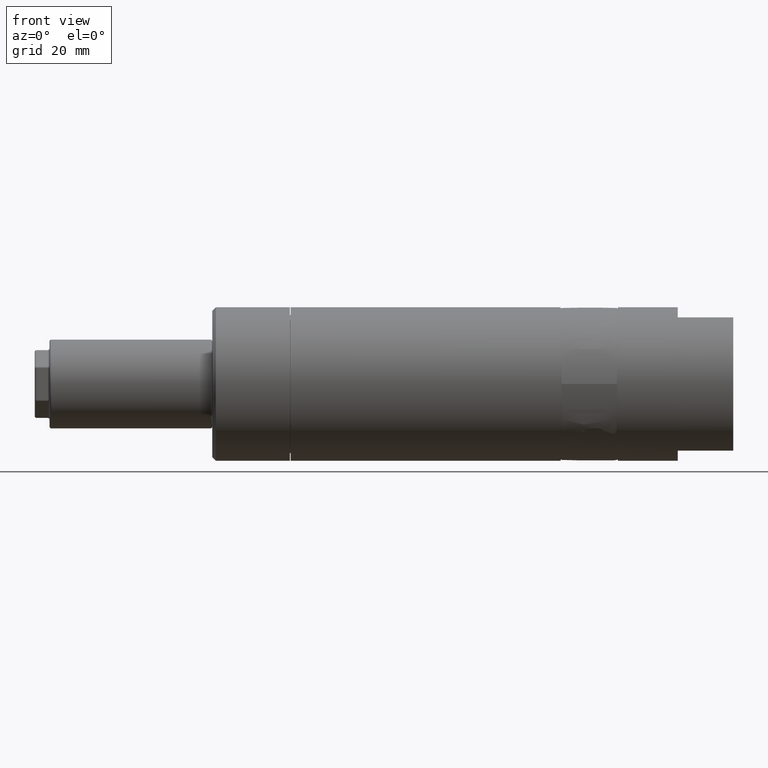
[diagram: clean part render]
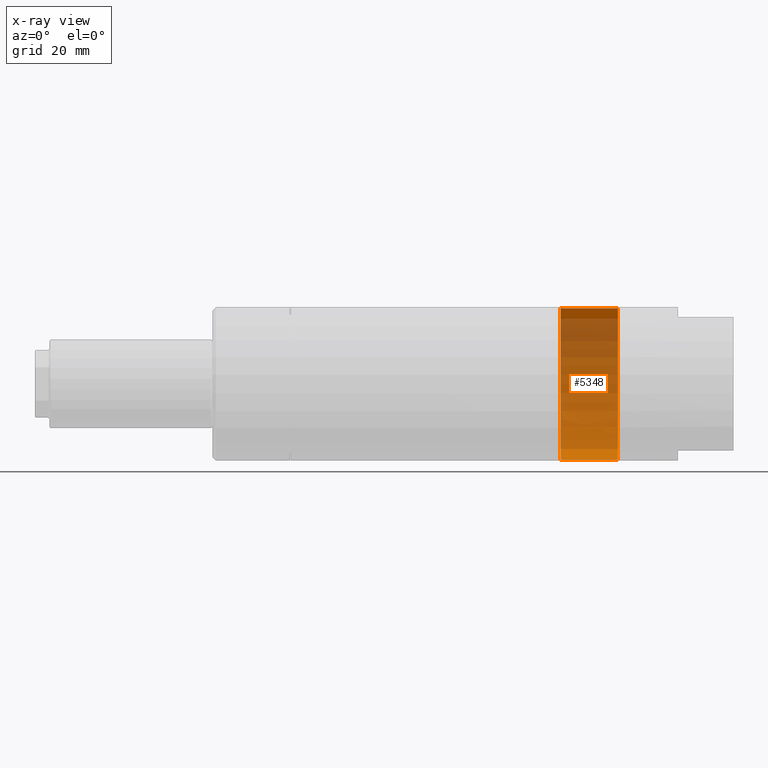
[diagram: x-ray — body ghosted, one internal face saturated and labeled with its STEP entity id]
A machine part, front view, then the same camera in x-ray: the body is ghosted and one INTERNAL B-rep face — a face not visible from any outside direction — is saturated and labeled: STEP entity #5348.
In plain terms, the highlighted cylindrical surface (partial cylindrical patch) has radius 20.45 mm, axis along (1, 0, 0).
Its self-contained STEP definition (entity closure, byte-faithful):
#216 = ORIENTED_EDGE ( 'NONE', *, *, #13164, .T. ) ;
#619 = DIRECTION ( 'NONE',  ( 1.000000000000000000, 0.0000000000000000000, 0.0000000000000000000 ) ) ;
#702 = CARTESIAN_POINT ( 'NONE',  ( -31.19999999999999900, 2.504402704256337000E-015, 20.44999999999999900 ) ) ;
#2868 = DIRECTION ( 'NONE',  ( 1.000000000000000000, 0.0000000000000000000, 0.0000000000000000000 ) ) ;
#3539 = CARTESIAN_POINT ( 'NONE',  ( -46.69999999999999600, 0.0000000000000000000, 0.0000000000000000000 ) ) ;
#3996 = CARTESIAN_POINT ( 'NONE',  ( -31.19999999999999900, 0.0000000000000000000, 0.0000000000000000000 ) ) ;
#4415 = CARTESIAN_POINT ( 'NONE',  ( 0.0000000000000000000, 0.0000000000000000000, -20.44999999999999900 ) ) ;
#4528 = CIRCLE ( 'NONE', #4906, 20.44999999999999900 ) ;
#4606 = CARTESIAN_POINT ( 'NONE',  ( 0.0000000000000000000, 2.504402704256337000E-015, 20.44999999999999900 ) ) ;
#4899 = AXIS2_PLACEMENT_3D ( 'NONE', #11643, #2868, #7247 ) ;
#4906 = AXIS2_PLACEMENT_3D ( 'NONE', #3539, #10689, #15150 ) ;
#4918 = VERTEX_POINT ( 'NONE', #7603 ) ;
#5348 = ADVANCED_FACE ( 'NONE', ( #17196 ), #14911, .T. ) ;
#5633 = CARTESIAN_POINT ( 'NONE',  ( -46.69999999999999600, 0.0000000000000000000, -20.44999999999999900 ) ) ;
#6609 = CIRCLE ( 'NONE', #7373, 20.44999999999999900 ) ;
#7247 = DIRECTION ( 'NONE',  ( 0.0000000000000000000, 0.0000000000000000000, -1.000000000000000000 ) ) ;
#7373 = AXIS2_PLACEMENT_3D ( 'NONE', #3996, #11330, #11087 ) ;
#7603 = CARTESIAN_POINT ( 'NONE',  ( -46.69999999999999600, 2.504402704256337000E-015, 20.44999999999999900 ) ) ;
#8102 = EDGE_CURVE ( 'NONE', #16271, #17191, #18211, .T. ) ;
#9153 = DIRECTION ( 'NONE',  ( 1.000000000000000000, 0.0000000000000000000, 0.0000000000000000000 ) ) ;
#10255 = CARTESIAN_POINT ( 'NONE',  ( -31.19999999999999900, 0.0000000000000000000, -20.44999999999999900 ) ) ;
#10689 = DIRECTION ( 'NONE',  ( 1.000000000000000000, 0.0000000000000000000, 0.0000000000000000000 ) ) ;
#11087 = DIRECTION ( 'NONE',  ( 0.0000000000000000000, 0.0000000000000000000, -1.000000000000000000 ) ) ;
#11330 = DIRECTION ( 'NONE',  ( 1.000000000000000000, 0.0000000000000000000, 0.0000000000000000000 ) ) ;
#11643 = CARTESIAN_POINT ( 'NONE',  ( 0.0000000000000000000, 0.0000000000000000000, 0.0000000000000000000 ) ) ;
#12215 = ORIENTED_EDGE ( 'NONE', *, *, #18034, .F. ) ;
#13164 = EDGE_CURVE ( 'NONE', #16271, #4918, #4528, .T. ) ;
#13208 = ORIENTED_EDGE ( 'NONE', *, *, #13621, .T. ) ;
#13621 = EDGE_CURVE ( 'NONE', #4918, #14985, #16586, .T. ) ;
#13957 = EDGE_LOOP ( 'NONE', ( #216, #13208, #12215, #17738 ) ) ;
#14911 = CYLINDRICAL_SURFACE ( 'NONE', #4899, 20.44999999999999900 ) ;
#14985 = VERTEX_POINT ( 'NONE', #702 ) ;
#15150 = DIRECTION ( 'NONE',  ( 0.0000000000000000000, 0.0000000000000000000, -1.000000000000000000 ) ) ;
#16170 = VECTOR ( 'NONE', #619, 1000.000000000000000 ) ;
#16271 = VERTEX_POINT ( 'NONE', #5633 ) ;
#16586 = LINE ( 'NONE', #4606, #17855 ) ;
#17191 = VERTEX_POINT ( 'NONE', #10255 ) ;
#17196 = FACE_OUTER_BOUND ( 'NONE', #13957, .T. ) ;
#17738 = ORIENTED_EDGE ( 'NONE', *, *, #8102, .F. ) ;
#17855 = VECTOR ( 'NONE', #9153, 1000.000000000000000 ) ;
#18034 = EDGE_CURVE ( 'NONE', #17191, #14985, #6609, .T. ) ;
#18211 = LINE ( 'NONE', #4415, #16170 ) ;